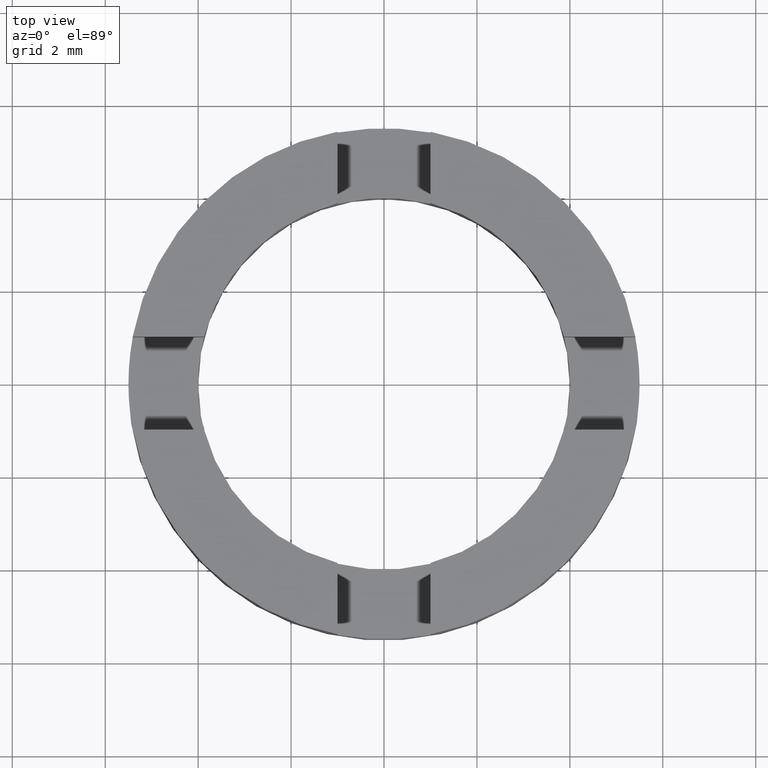
[diagram: clean part render]
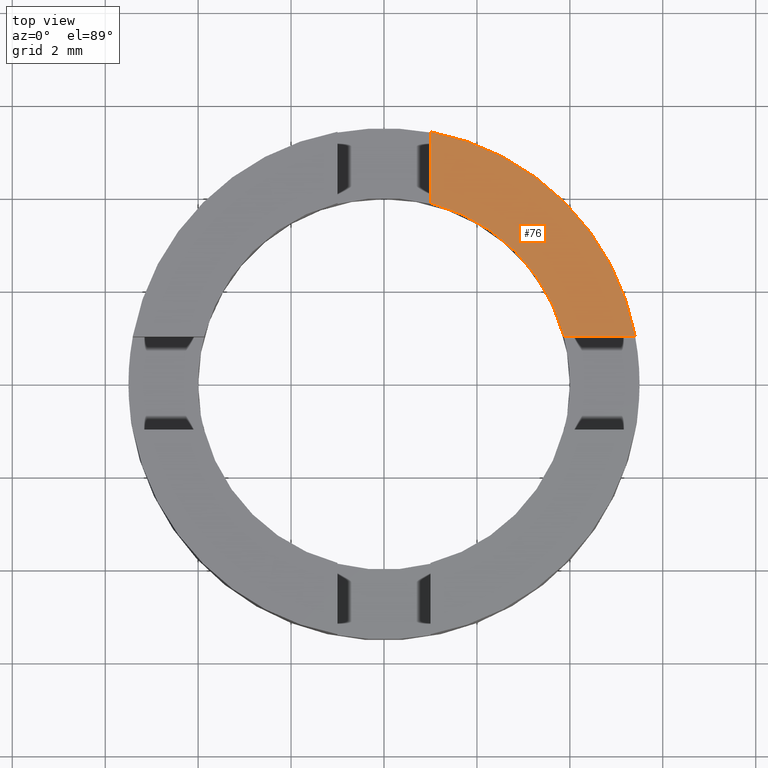
[diagram: same view with one face highlighted and labeled with its STEP entity id]
A machine part, top view. The second image highlights one B-rep face of the part: STEP entity #76.
In plain terms, the highlighted planar face has unit normal (0, 0, 1).
Its self-contained STEP definition (entity closure, byte-faithful):
#20 = FACE_OUTER_BOUND ( 'NONE', #488, .T. ) ;
#61 = VECTOR ( 'NONE', #665, 1000.000000000000000 ) ;
#67 = LINE ( 'NONE', #386, #61 ) ;
#76 = ADVANCED_FACE ( 'NONE', ( #20 ), #317, .T. ) ;
#107 = CARTESIAN_POINT ( 'NONE',  ( 0.000000000000000000, 0.000000000000000000, 2.500000000000000000 ) ) ;
#114 = DIRECTION ( 'NONE',  ( 1.000000000000000000, 0.000000000000000000, -0.000000000000000000 ) ) ;
#138 = CARTESIAN_POINT ( 'NONE',  ( 0.000000000000000000, 0.000000000000000000, 2.500000000000000000 ) ) ;
#165 = VERTEX_POINT ( 'NONE', #393 ) ;
#199 = CIRCLE ( 'NONE', #530, 4.000000000000000000 ) ;
#203 = VECTOR ( 'NONE', #692, 1000.000000000000000 ) ;
#220 = DIRECTION ( 'NONE',  ( 1.000000000000000000, 0.000000000000000000, 0.000000000000000000 ) ) ;
#237 = ORIENTED_EDGE ( 'NONE', *, *, #540, .T. ) ;
#239 = ORIENTED_EDGE ( 'NONE', *, *, #332, .T. ) ;
#249 = CIRCLE ( 'NONE', #365, 5.500000000000000000 ) ;
#250 = VERTEX_POINT ( 'NONE', #640 ) ;
#308 = CARTESIAN_POINT ( 'NONE',  ( 0.9999999999999991118, 3.872983346207417465, 2.500000000000000000 ) ) ;
#317 = PLANE ( 'NONE',  #400 ) ;
#332 = EDGE_CURVE ( 'NONE', #165, #250, #67, .T. ) ;
#365 = AXIS2_PLACEMENT_3D ( 'NONE', #138, #379, #620 ) ;
#379 = DIRECTION ( 'NONE',  ( 0.000000000000000000, 0.000000000000000000, 1.000000000000000000 ) ) ;
#386 = CARTESIAN_POINT ( 'NONE',  ( 3.272319284228981178E-15, 1.000000000000000888, 2.500000000000000000 ) ) ;
#393 = CARTESIAN_POINT ( 'NONE',  ( 3.872983346207420130, 0.9999999999999883427, 2.500000000000000000 ) ) ;
#400 = AXIS2_PLACEMENT_3D ( 'NONE', #693, #643, #114 ) ;
#403 = ORIENTED_EDGE ( 'NONE', *, *, #573, .F. ) ;
#488 = EDGE_LOOP ( 'NONE', ( #675, #403, #239, #237 ) ) ;
#530 = AXIS2_PLACEMENT_3D ( 'NONE', #107, #685, #220 ) ;
#540 = EDGE_CURVE ( 'NONE', #250, #560, #249, .T. ) ;
#559 = VERTEX_POINT ( 'NONE', #308 ) ;
#560 = VERTEX_POINT ( 'NONE', #589 ) ;
#573 = EDGE_CURVE ( 'NONE', #165, #559, #199, .T. ) ;
#589 = CARTESIAN_POINT ( 'NONE',  ( 0.9999999999999986677, 5.408326913195983465, 2.500000000000000000 ) ) ;
#620 = DIRECTION ( 'NONE',  ( 1.000000000000000000, 0.000000000000000000, 0.000000000000000000 ) ) ;
#640 = CARTESIAN_POINT ( 'NONE',  ( 5.408326913195987018, 0.9999999999999831246, 2.500000000000000000 ) ) ;
#643 = DIRECTION ( 'NONE',  ( 0.000000000000000000, 0.000000000000000000, 1.000000000000000000 ) ) ;
#645 = CARTESIAN_POINT ( 'NONE',  ( 1.000000000000000000, 2.365532012695646217E-16, 2.500000000000000000 ) ) ;
#659 = EDGE_CURVE ( 'NONE', #559, #560, #704, .T. ) ;
#665 = DIRECTION ( 'NONE',  ( 1.000000000000000000, -3.272319284228978023E-15, 0.000000000000000000 ) ) ;
#675 = ORIENTED_EDGE ( 'NONE', *, *, #659, .F. ) ;
#685 = DIRECTION ( 'NONE',  ( 0.000000000000000000, 0.000000000000000000, 1.000000000000000000 ) ) ;
#692 = DIRECTION ( 'NONE',  ( -2.365532012695646217E-16, 1.000000000000000000, 0.000000000000000000 ) ) ;
#693 = CARTESIAN_POINT ( 'NONE',  ( 0.000000000000000000, 0.000000000000000000, 2.500000000000000000 ) ) ;
#704 = LINE ( 'NONE', #645, #203 ) ;